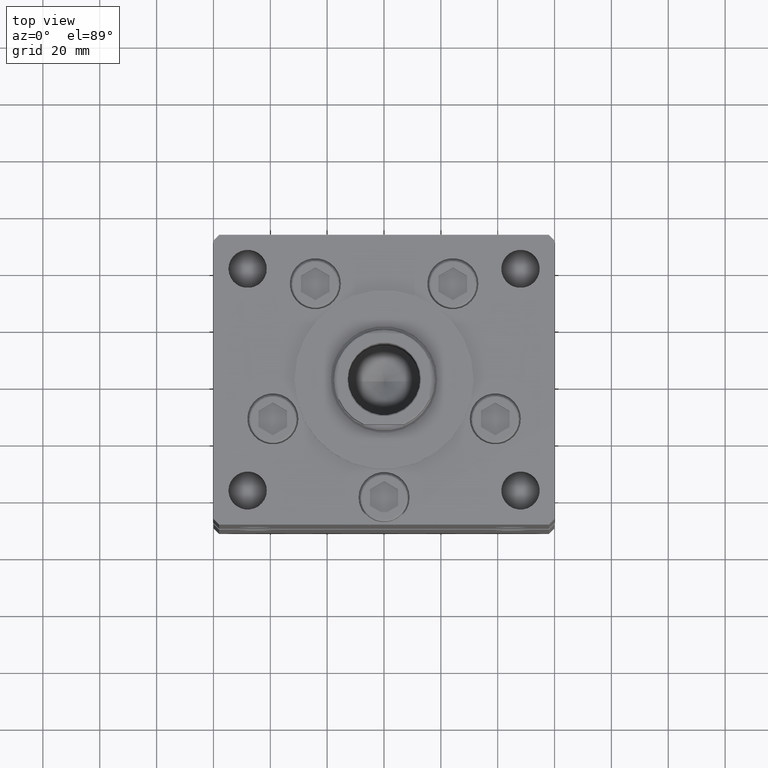
[diagram: clean part render]
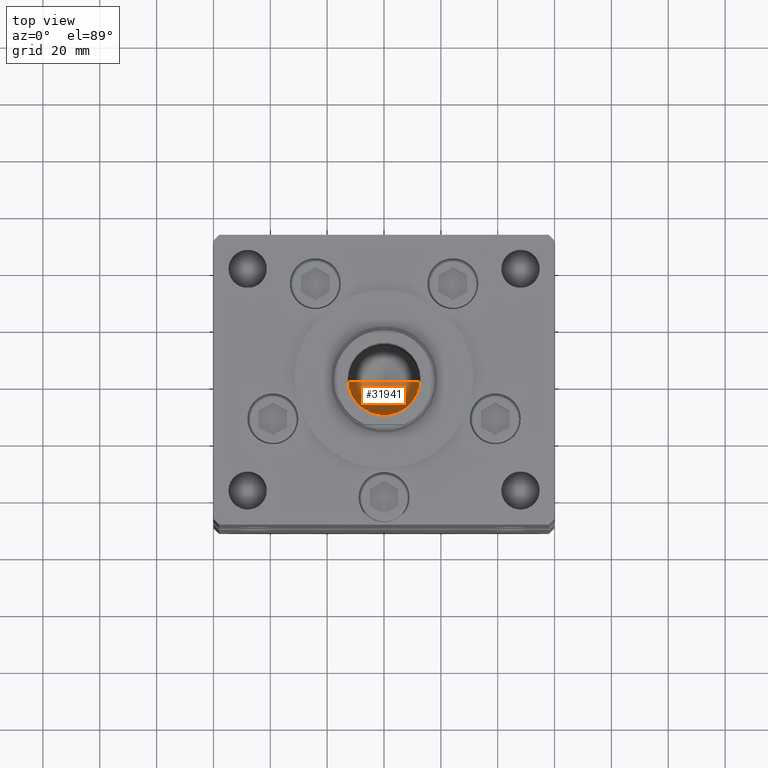
[diagram: same view with one face highlighted and labeled with its STEP entity id]
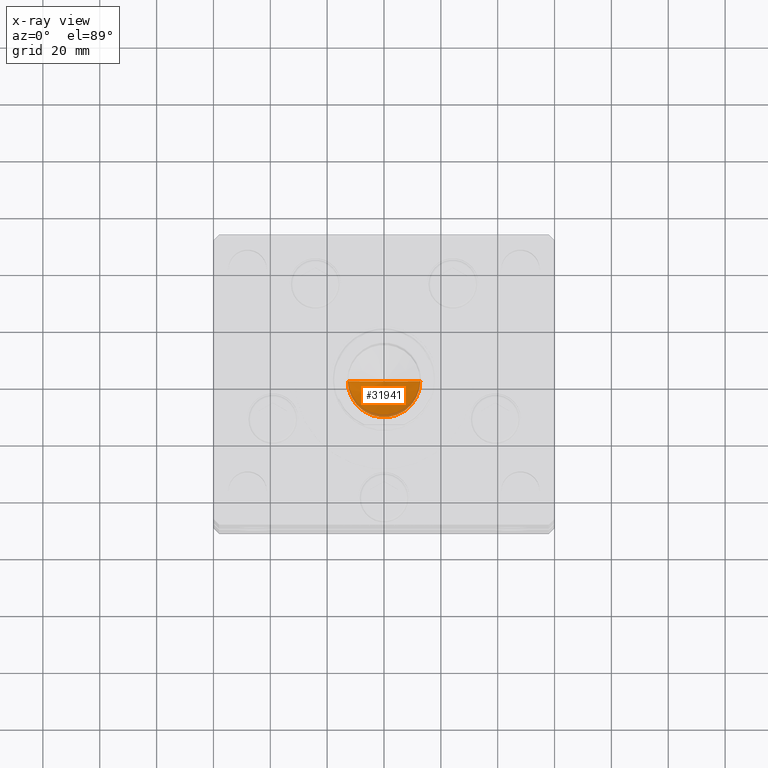
[diagram: x-ray of the same camera — body ghosted, the highlighted face saturated]
A machine part, top view. The second image highlights one B-rep face of the part: STEP entity #31941.
The next image is the same camera in x-ray: the body ghosted, the highlighted face saturated — about 8% of this face is hidden behind the body in this view.
In plain terms, the highlighted conical surface has half-angle 59 deg.
Its self-contained STEP definition (entity closure, byte-faithful):
#1613 = VECTOR ( 'NONE', #35621, 1000.000000000000000 ) ;
#2301 = CARTESIAN_POINT ( 'NONE',  ( 0.000000000000000000, 0.000000000000000000, 124.2500000000000142 ) ) ;
#3097 = FACE_OUTER_BOUND ( 'NONE', #17535, .T. ) ;
#6610 = EDGE_CURVE ( 'NONE', #16700, #36008, #23215, .T. ) ;
#10891 = EDGE_CURVE ( 'NONE', #36008, #32886, #33428, .T. ) ;
#12647 = AXIS2_PLACEMENT_3D ( 'NONE', #2301, #18683, #35065 ) ;
#12773 = CARTESIAN_POINT ( 'NONE',  ( -1.307202896762960287E-14, 0.000000000000000000, 116.5890271073986213 ) ) ;
#13573 = VECTOR ( 'NONE', #40107, 1000.000000000000000 ) ;
#13885 = LINE ( 'NONE', #46629, #1613 ) ;
#16700 = VERTEX_POINT ( 'NONE', #12773 ) ;
#17535 = EDGE_LOOP ( 'NONE', ( #28261, #38270, #37230 ) ) ;
#18683 = DIRECTION ( 'NONE',  ( -0.000000000000000000, -0.000000000000000000, 1.000000000000000000 ) ) ;
#21199 = CONICAL_SURFACE ( 'NONE', #12647, 12.74999999999999112, 1.029744258676653423 ) ;
#23215 = LINE ( 'NONE', #40380, #13573 ) ;
#24282 = DIRECTION ( 'NONE',  ( -0.000000000000000000, -0.000000000000000000, 1.000000000000000000 ) ) ;
#28261 = ORIENTED_EDGE ( 'NONE', *, *, #35415, .F. ) ;
#30827 = CARTESIAN_POINT ( 'NONE',  ( 12.74999999999999112, 0.000000000000000000, 124.2500000000000142 ) ) ;
#31941 = ADVANCED_FACE ( 'NONE', ( #3097 ), #21199, .F. ) ;
#32618 = DIRECTION ( 'NONE',  ( 1.000000000000000000, 0.000000000000000000, 0.000000000000000000 ) ) ;
#32886 = VERTEX_POINT ( 'NONE', #30827 ) ;
#33428 = CIRCLE ( 'NONE', #45410, 12.74999999999999112 ) ;
#35065 = DIRECTION ( 'NONE',  ( 1.000000000000000000, 0.000000000000000000, 0.000000000000000000 ) ) ;
#35415 = EDGE_CURVE ( 'NONE', #16700, #32886, #13885, .T. ) ;
#35621 = DIRECTION ( 'NONE',  ( 0.8571673007021117785, 0.000000000000000000, 0.5150380749100550437 ) ) ;
#36008 = VERTEX_POINT ( 'NONE', #37588 ) ;
#36114 = CARTESIAN_POINT ( 'NONE',  ( 0.000000000000000000, 0.000000000000000000, 124.2500000000000142 ) ) ;
#37230 = ORIENTED_EDGE ( 'NONE', *, *, #10891, .T. ) ;
#37588 = CARTESIAN_POINT ( 'NONE',  ( -12.74999999999999112, 1.561424668912874125E-15, 124.2500000000000142 ) ) ;
#38270 = ORIENTED_EDGE ( 'NONE', *, *, #6610, .T. ) ;
#40107 = DIRECTION ( 'NONE',  ( -0.8571673007021117785, 1.049727191138617956E-16, 0.5150380749100550437 ) ) ;
#40380 = CARTESIAN_POINT ( 'NONE',  ( -12.74999999999999112, 1.561424668912874125E-15, 124.2500000000000142 ) ) ;
#45410 = AXIS2_PLACEMENT_3D ( 'NONE', #36114, #24282, #32618 ) ;
#46629 = CARTESIAN_POINT ( 'NONE',  ( 12.74999999999999112, 0.000000000000000000, 124.2500000000000142 ) ) ;